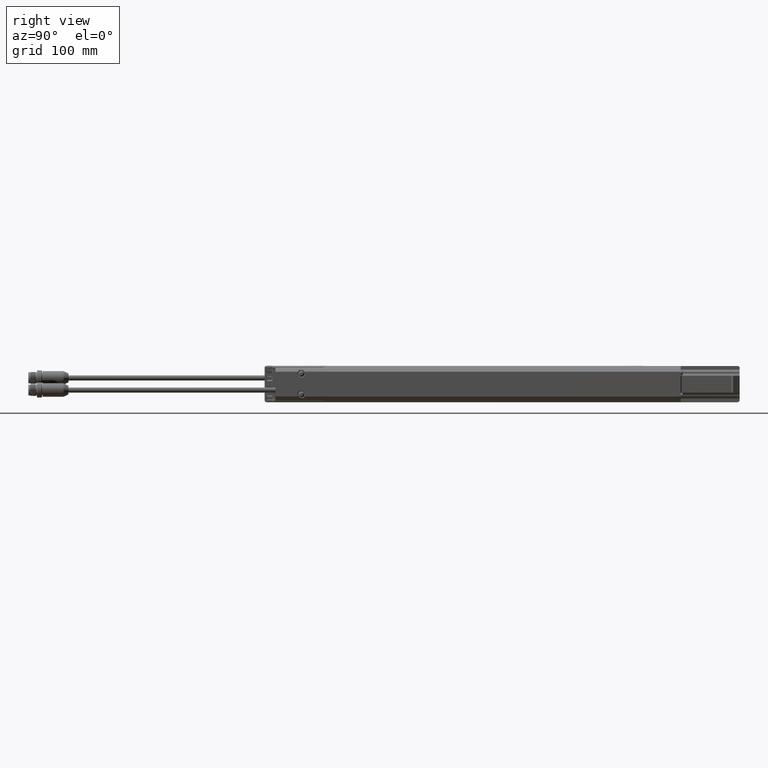
[diagram: clean part render]
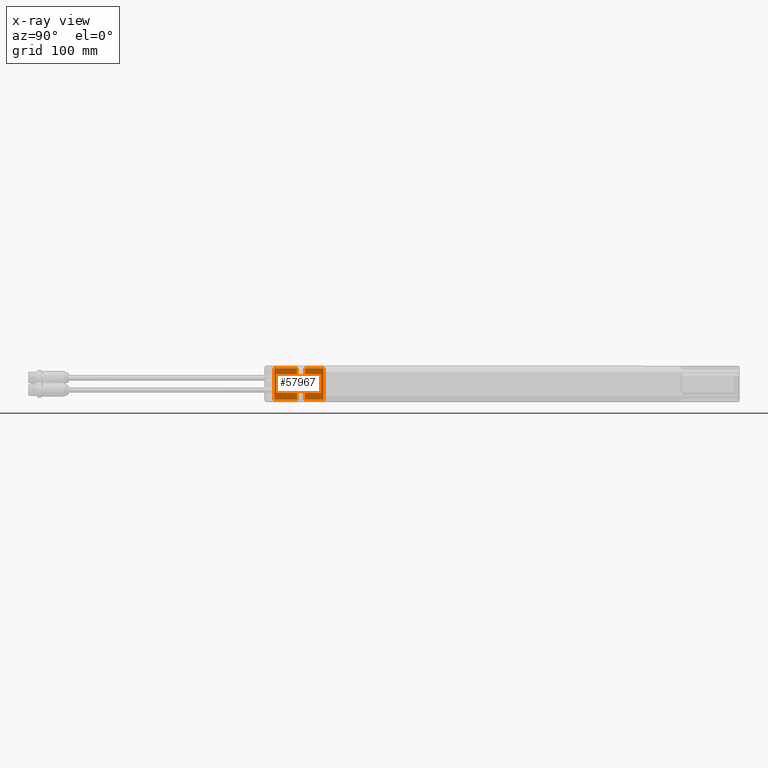
[diagram: x-ray — body ghosted, one internal face saturated and labeled with its STEP entity id]
A machine part, right view, then the same camera in x-ray: the body is ghosted and one INTERNAL B-rep face — a face not visible from any outside direction — is saturated and labeled: STEP entity #57967.
In plain terms, the highlighted planar face has unit normal (1, 0, -0).
Its self-contained STEP definition (entity closure, byte-faithful):
#2072 = CARTESIAN_POINT ( 'NONE',  ( 2.612204724409567191, -7.509842519685039797, -0.6003937007873662024 ) ) ;
#3188 = LINE ( 'NONE', #41801, #25238 ) ;
#4577 = LINE ( 'NONE', #17128, #15267 ) ;
#4827 = VERTEX_POINT ( 'NONE', #20151 ) ;
#6820 = AXIS2_PLACEMENT_3D ( 'NONE', #16868, #7642, #25618 ) ;
#6905 = EDGE_CURVE ( 'NONE', #8449, #4827, #45289, .T. ) ;
#7642 = DIRECTION ( 'NONE',  ( -1.000000000000000000, -1.480297366166918091E-14, 4.625929269272839796E-16 ) ) ;
#8449 = VERTEX_POINT ( 'NONE', #93964 ) ;
#8527 = ORIENTED_EDGE ( 'NONE', *, *, #17691, .T. ) ;
#9219 = VERTEX_POINT ( 'NONE', #47382 ) ;
#10971 = EDGE_LOOP ( 'NONE', ( #75495, #67784, #8527, #52715, #86522, #13494, #24532, #53079, #43841, #11057, #11832, #51413 ) ) ;
#11057 = ORIENTED_EDGE ( 'NONE', *, *, #37325, .T. ) ;
#11832 = ORIENTED_EDGE ( 'NONE', *, *, #69737, .T. ) ;
#12036 = CARTESIAN_POINT ( 'NONE',  ( 2.612204724409567191, -7.509842519685039797, 0.6003937007874370346 ) ) ;
#13103 = VERTEX_POINT ( 'NONE', #18244 ) ;
#13494 = ORIENTED_EDGE ( 'NONE', *, *, #49743, .T. ) ;
#15267 = VECTOR ( 'NONE', #32600, 39.37007874015748143 ) ;
#16574 = AXIS2_PLACEMENT_3D ( 'NONE', #86993, #71010, #26247 ) ;
#16809 = VECTOR ( 'NONE', #90067, 39.37007874015748143 ) ;
#16868 = CARTESIAN_POINT ( 'NONE',  ( 2.612204724409693313, -7.657480314960630530, 0.3937007874016015818 ) ) ;
#17128 = CARTESIAN_POINT ( 'NONE',  ( 2.612204724409586731, -8.661417322834646271, 0.6003937007874370346 ) ) ;
#17691 = EDGE_CURVE ( 'NONE', #38987, #58888, #74582, .T. ) ;
#18244 = CARTESIAN_POINT ( 'NONE',  ( 2.612204724409586731, -8.661417322834646271, -0.6003937007873662024 ) ) ;
#18603 = VECTOR ( 'NONE', #35215, 39.37007874015748143 ) ;
#19383 = VERTEX_POINT ( 'NONE', #2072 ) ;
#19522 = CARTESIAN_POINT ( 'NONE',  ( 2.612204724409555645, -6.796259842519685179, 0.6003937007874370346 ) ) ;
#20151 = CARTESIAN_POINT ( 'NONE',  ( 2.612204724409634249, -7.509842519685039797, -0.3937007874015314712 ) ) ;
#20514 = LINE ( 'NONE', #60102, #84358 ) ;
#21049 = VERTEX_POINT ( 'NONE', #12036 ) ;
#23283 = LINE ( 'NONE', #78344, #101372 ) ;
#24532 = ORIENTED_EDGE ( 'NONE', *, *, #6905, .T. ) ;
#25238 = VECTOR ( 'NONE', #73186, 39.37007874015748143 ) ;
#25277 = VERTEX_POINT ( 'NONE', #47535 ) ;
#25618 = DIRECTION ( 'NONE',  ( -1.480297366166917775E-14, 1.000000000000000000, 0.000000000000000000 ) ) ;
#26247 = DIRECTION ( 'NONE',  ( -1.537094443383489942E-14, 1.000000000000000000, 0.000000000000000000 ) ) ;
#26864 = EDGE_CURVE ( 'NONE', #21049, #47174, #92571, .T. ) ;
#32600 = DIRECTION ( 'NONE',  ( -3.885780586188049864E-16, -5.930126228680760615E-30, -1.000000000000000000 ) ) ;
#33571 = CARTESIAN_POINT ( 'NONE',  ( 2.612204724409665335, -7.509842519685039797, 0.3937007874016015818 ) ) ;
#33971 = FACE_OUTER_BOUND ( 'NONE', #10971, .T. ) ;
#35215 = DIRECTION ( 'NONE',  ( -1.537094443383489942E-14, 1.000000000000000000, 4.268551855633984852E-32 ) ) ;
#37325 = EDGE_CURVE ( 'NONE', #67478, #50042, #82088, .T. ) ;
#38987 = VERTEX_POINT ( 'NONE', #44525 ) ;
#39242 = DIRECTION ( 'NONE',  ( -1.537094443383489942E-14, 1.000000000000000000, 4.268551855633984852E-32 ) ) ;
#41801 = CARTESIAN_POINT ( 'NONE',  ( 2.612204724409571188, -7.805118110236221263, 0.6003937007874370346 ) ) ;
#42907 = LINE ( 'NONE', #66584, #18603 ) ;
#43841 = ORIENTED_EDGE ( 'NONE', *, *, #49417, .T. ) ;
#44525 = CARTESIAN_POINT ( 'NONE',  ( 2.612204724409571188, -7.805118110236221263, 0.6003937007874370346 ) ) ;
#45289 = CIRCLE ( 'NONE', #69968, 0.1476377952755863199 ) ;
#45819 = CARTESIAN_POINT ( 'NONE',  ( 2.612204724409555645, -6.796259842519685179, -0.6003937007873662024 ) ) ;
#46259 = CIRCLE ( 'NONE', #6820, 0.1476377952755863199 ) ;
#47174 = VERTEX_POINT ( 'NONE', #33571 ) ;
#47382 = CARTESIAN_POINT ( 'NONE',  ( 2.612204724409638246, -7.805118110236221263, 0.3937007874016015818 ) ) ;
#47535 = CARTESIAN_POINT ( 'NONE',  ( 2.612204724409571188, -7.805118110236221263, -0.6003937007873662024 ) ) ;
#48118 = EDGE_CURVE ( 'NONE', #4827, #19383, #51742, .T. ) ;
#49417 = EDGE_CURVE ( 'NONE', #19383, #67478, #42907, .T. ) ;
#49743 = EDGE_CURVE ( 'NONE', #25277, #8449, #3188, .T. ) ;
#50042 = VERTEX_POINT ( 'NONE', #64712 ) ;
#50193 = DIRECTION ( 'NONE',  ( 3.885780586188049864E-16, 5.930126228680760615E-30, 1.000000000000000000 ) ) ;
#51413 = ORIENTED_EDGE ( 'NONE', *, *, #26864, .T. ) ;
#51742 = LINE ( 'NONE', #59961, #55908 ) ;
#52715 = ORIENTED_EDGE ( 'NONE', *, *, #69609, .T. ) ;
#53079 = ORIENTED_EDGE ( 'NONE', *, *, #48118, .T. ) ;
#55434 = DIRECTION ( 'NONE',  ( -3.885780586188049864E-16, -5.930126228680760615E-30, -1.000000000000000000 ) ) ;
#55908 = VECTOR ( 'NONE', #83159, 39.37007874015748143 ) ;
#57529 = DIRECTION ( 'NONE',  ( 3.885780586188049864E-16, 5.930126228680760615E-30, 1.000000000000000000 ) ) ;
#57942 = CARTESIAN_POINT ( 'NONE',  ( 2.612204724409586731, -8.661417322834646271, 0.6003937007874370346 ) ) ;
#57967 = ADVANCED_FACE ( 'NONE', ( #33971 ), #88523, .T. ) ;
#58378 = CARTESIAN_POINT ( 'NONE',  ( 2.612204724409555645, -6.796259842519685179, 0.6003937007874370346 ) ) ;
#58807 = EDGE_CURVE ( 'NONE', #47174, #9219, #46259, .T. ) ;
#58888 = VERTEX_POINT ( 'NONE', #57942 ) ;
#59299 = VECTOR ( 'NONE', #50193, 39.37007874015748143 ) ;
#59961 = CARTESIAN_POINT ( 'NONE',  ( 2.612204724409567191, -7.509842519685039797, 0.6003937007874370346 ) ) ;
#60102 = CARTESIAN_POINT ( 'NONE',  ( 2.612204724409555645, -6.796259842519685179, 0.6003937007874370346 ) ) ;
#62743 = VECTOR ( 'NONE', #55434, 39.37007874015748143 ) ;
#64712 = CARTESIAN_POINT ( 'NONE',  ( 2.612204724409555645, -6.796259842519685179, 0.6003937007874370346 ) ) ;
#65310 = CARTESIAN_POINT ( 'NONE',  ( 2.612204724409571188, -7.805118110236221263, 0.6003937007874370346 ) ) ;
#66584 = CARTESIAN_POINT ( 'NONE',  ( 2.612204724409555645, -6.796259842519685179, -0.6003937007873662024 ) ) ;
#67478 = VERTEX_POINT ( 'NONE', #45819 ) ;
#67784 = ORIENTED_EDGE ( 'NONE', *, *, #101580, .T. ) ;
#69609 = EDGE_CURVE ( 'NONE', #58888, #13103, #4577, .T. ) ;
#69737 = EDGE_CURVE ( 'NONE', #50042, #21049, #20514, .T. ) ;
#69968 = AXIS2_PLACEMENT_3D ( 'NONE', #97646, #94257, #81191 ) ;
#71010 = DIRECTION ( 'NONE',  ( 1.000000000000000000, 1.537094443383489942E-14, -3.885780586188049864E-16 ) ) ;
#73186 = DIRECTION ( 'NONE',  ( 3.885780586188049864E-16, 5.930126228680760615E-30, 1.000000000000000000 ) ) ;
#74582 = LINE ( 'NONE', #19522, #16809 ) ;
#75495 = ORIENTED_EDGE ( 'NONE', *, *, #58807, .T. ) ;
#78344 = CARTESIAN_POINT ( 'NONE',  ( 2.612204724409555645, -6.796259842519685179, -0.6003937007873662024 ) ) ;
#81191 = DIRECTION ( 'NONE',  ( -1.480297366166917775E-14, 1.000000000000000000, 0.000000000000000000 ) ) ;
#82088 = LINE ( 'NONE', #58378, #59299 ) ;
#83159 = DIRECTION ( 'NONE',  ( -3.885780586188049864E-16, -5.930126228680760615E-30, -1.000000000000000000 ) ) ;
#83808 = DIRECTION ( 'NONE',  ( 1.537094443383489942E-14, -1.000000000000000000, -4.268551855633984852E-32 ) ) ;
#84358 = VECTOR ( 'NONE', #83808, 39.37007874015748143 ) ;
#85360 = CARTESIAN_POINT ( 'NONE',  ( 2.612204724409567191, -7.509842519685039797, 0.6003937007874370346 ) ) ;
#86522 = ORIENTED_EDGE ( 'NONE', *, *, #98795, .T. ) ;
#86631 = VECTOR ( 'NONE', #57529, 39.37007874015748143 ) ;
#86993 = CARTESIAN_POINT ( 'NONE',  ( 2.612204724409555645, -6.796259842519685179, 0.6003937007874370346 ) ) ;
#88501 = LINE ( 'NONE', #65310, #86631 ) ;
#88523 = PLANE ( 'NONE',  #16574 ) ;
#90067 = DIRECTION ( 'NONE',  ( 1.537094443383489942E-14, -1.000000000000000000, -4.268551855633984852E-32 ) ) ;
#92571 = LINE ( 'NONE', #85360, #62743 ) ;
#93964 = CARTESIAN_POINT ( 'NONE',  ( 2.612204724409669776, -7.805118110236221263, -0.3937007874015314712 ) ) ;
#94257 = DIRECTION ( 'NONE',  ( -1.000000000000000000, -1.480297366166918091E-14, 4.625929269272839796E-16 ) ) ;
#97646 = CARTESIAN_POINT ( 'NONE',  ( 2.612204724409693313, -7.657480314960630530, -0.3937007874015314712 ) ) ;
#98795 = EDGE_CURVE ( 'NONE', #13103, #25277, #23283, .T. ) ;
#101372 = VECTOR ( 'NONE', #39242, 39.37007874015748143 ) ;
#101580 = EDGE_CURVE ( 'NONE', #9219, #38987, #88501, .T. ) ;